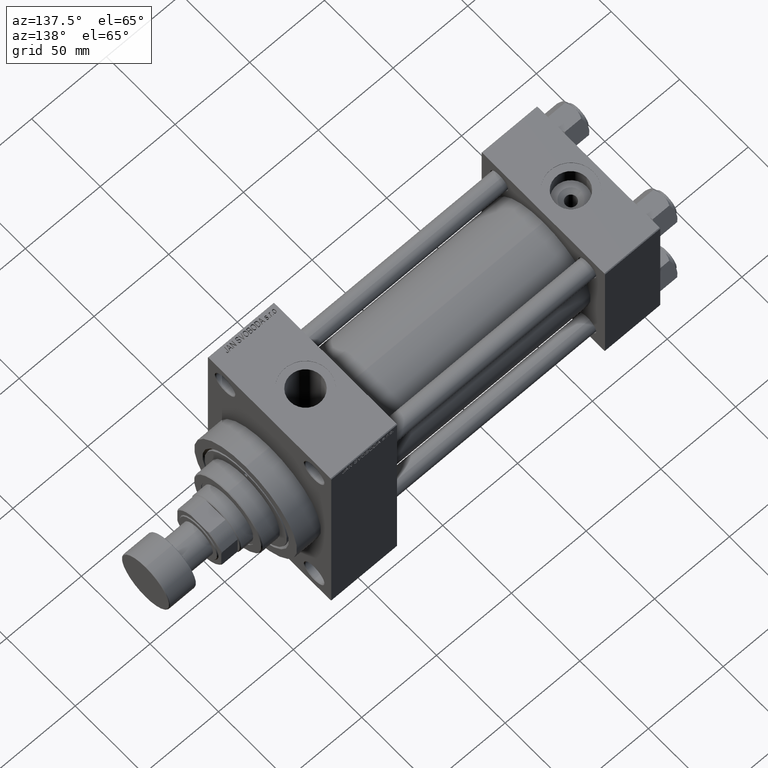
[diagram: clean part render]
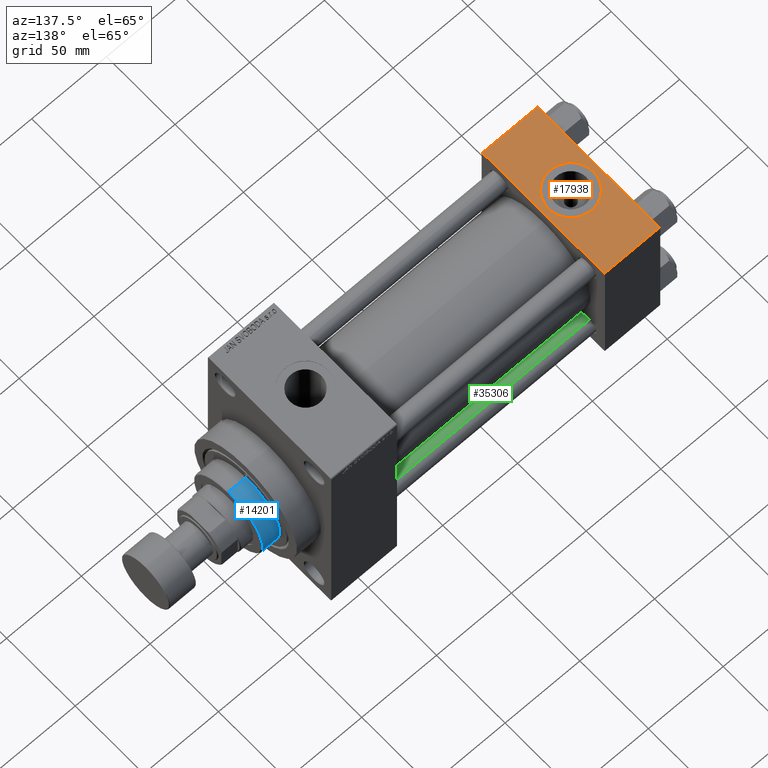
[diagram: same view with three faces highlighted in distinct colors, each labeled with its STEP entity id]
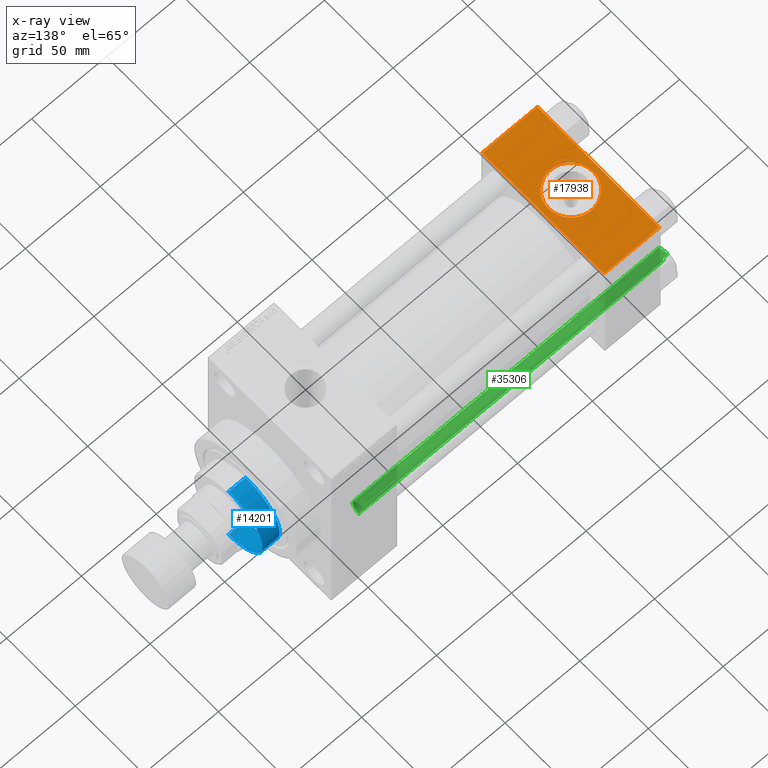
[diagram: x-ray of the same camera — body ghosted, the three highlighted faces saturated]
A machine part, auxiliary view with three faces highlighted in distinct colors.
The next image is the same camera in x-ray (body ghosted, the three faces saturated) — at least one of them is partly hidden behind the body in this view.
Their STEP definitions:

[orange] entity #17938 — the highlighted planar face has unit normal (0, 0, -1).
#130 = CARTESIAN_POINT ( 'NONE',  ( 37.00000000000000000, 44.99999999999998579, 45.00000000000001421 ) ) ;
#324 = CARTESIAN_POINT ( 'NONE',  ( 37.00000000000000000, 44.49999999999998579, 45.00000000000001421 ) ) ;
#432 = LINE ( 'NONE', #4038, #33107 ) ;
#2066 = EDGE_LOOP ( 'NONE', ( #25202, #12682, #42673, #21656 ) ) ;
#2380 = CARTESIAN_POINT ( 'NONE',  ( 33.50000000000000000, -8.673617379884038628E-15, 45.00000000000000711 ) ) ;
#2385 = CARTESIAN_POINT ( 'NONE',  ( 18.50000000000000000, -8.673617379884038628E-15, 45.00000000000000711 ) ) ;
#2559 = CARTESIAN_POINT ( 'NONE',  ( 37.00000000000000000, -44.49999999999995737, 45.00000000000000000 ) ) ;
#2799 = DIRECTION ( 'NONE',  ( 0.000000000000000000, -1.000000000000000000, -1.541976423090495387E-16 ) ) ;
#3414 = CARTESIAN_POINT ( 'NONE',  ( 37.00000000000000000, 44.99999999999998579, 45.00000000000001421 ) ) ;
#3776 = LINE ( 'NONE', #7181, #11688 ) ;
#4038 = CARTESIAN_POINT ( 'NONE',  ( 0.000000000000000000, 44.49999999999998579, 45.00000000000001421 ) ) ;
#4618 = CIRCLE ( 'NONE', #15455, 15.00000000000000355 ) ;
#5720 = DIRECTION ( 'NONE',  ( 1.000000000000000000, 0.000000000000000000, 0.000000000000000000 ) ) ;
#6525 = VERTEX_POINT ( 'NONE', #27714 ) ;
#6770 = VERTEX_POINT ( 'NONE', #2380 ) ;
#6875 = VECTOR ( 'NONE', #5720, 1000.000000000000000 ) ;
#7181 = CARTESIAN_POINT ( 'NONE',  ( 0.000000000000000000, 44.99999999999998579, 45.00000000000001421 ) ) ;
#8363 = CIRCLE ( 'NONE', #14570, 15.00000000000000355 ) ;
#11688 = VECTOR ( 'NONE', #47631, 1000.000000000000000 ) ;
#12682 = ORIENTED_EDGE ( 'NONE', *, *, #32626, .T. ) ;
#13538 = DIRECTION ( 'NONE',  ( 1.000000000000000000, 0.000000000000000000, 0.000000000000000000 ) ) ;
#14570 = AXIS2_PLACEMENT_3D ( 'NONE', #2385, #31938, #13538 ) ;
#15302 = FACE_OUTER_BOUND ( 'NONE', #2066, .T. ) ;
#15455 = AXIS2_PLACEMENT_3D ( 'NONE', #21892, #29167, #43952 ) ;
#15534 = DIRECTION ( 'NONE',  ( 0.000000000000000000, 1.000000000000000000, 1.541976423090495633E-16 ) ) ;
#16593 = CARTESIAN_POINT ( 'NONE',  ( 0.000000000000000000, -44.49999999999995737, 45.00000000000000000 ) ) ;
#16923 = VERTEX_POINT ( 'NONE', #324 ) ;
#17938 = ADVANCED_FACE ( 'NONE', ( #37081, #15302 ), #22073, .F. ) ;
#21457 = LINE ( 'NONE', #130, #22300 ) ;
#21656 = ORIENTED_EDGE ( 'NONE', *, *, #32449, .T. ) ;
#21892 = CARTESIAN_POINT ( 'NONE',  ( 18.50000000000000000, -8.673617379884038628E-15, 45.00000000000000711 ) ) ;
#22073 = PLANE ( 'NONE',  #36749 ) ;
#22300 = VECTOR ( 'NONE', #2799, 1000.000000000000000 ) ;
#22381 = ORIENTED_EDGE ( 'NONE', *, *, #32356, .F. ) ;
#25202 = ORIENTED_EDGE ( 'NONE', *, *, #38329, .T. ) ;
#27714 = CARTESIAN_POINT ( 'NONE',  ( 3.499999999999997780, -6.836647181163008250E-15, 45.00000000000000711 ) ) ;
#28806 = EDGE_CURVE ( 'NONE', #16923, #29642, #21457, .T. ) ;
#29167 = DIRECTION ( 'NONE',  ( 0.000000000000000000, 0.000000000000000000, 1.000000000000000000 ) ) ;
#29642 = VERTEX_POINT ( 'NONE', #2559 ) ;
#30933 = CARTESIAN_POINT ( 'NONE',  ( 37.00000000000000000, -44.49999999999998579, 45.00000000000000000 ) ) ;
#31277 = EDGE_LOOP ( 'NONE', ( #36359, #22381 ) ) ;
#31938 = DIRECTION ( 'NONE',  ( 0.000000000000000000, 0.000000000000000000, 1.000000000000000000 ) ) ;
#32356 = EDGE_CURVE ( 'NONE', #6525, #6770, #8363, .T. ) ;
#32449 = EDGE_CURVE ( 'NONE', #16923, #42569, #432, .T. ) ;
#32626 = EDGE_CURVE ( 'NONE', #33611, #29642, #38911, .T. ) ;
#33107 = VECTOR ( 'NONE', #40642, 1000.000000000000000 ) ;
#33611 = VERTEX_POINT ( 'NONE', #16593 ) ;
#34701 = EDGE_CURVE ( 'NONE', #6770, #6525, #4618, .T. ) ;
#36359 = ORIENTED_EDGE ( 'NONE', *, *, #34701, .F. ) ;
#36749 = AXIS2_PLACEMENT_3D ( 'NONE', #3414, #36848, #15534 ) ;
#36848 = DIRECTION ( 'NONE',  ( 0.000000000000000000, 1.541976423090495633E-16, -1.000000000000000000 ) ) ;
#37081 = FACE_BOUND ( 'NONE', #31277, .T. ) ;
#38329 = EDGE_CURVE ( 'NONE', #42569, #33611, #3776, .T. ) ;
#38911 = LINE ( 'NONE', #30933, #6875 ) ;
#40642 = DIRECTION ( 'NONE',  ( -1.000000000000000000, 0.000000000000000000, 0.000000000000000000 ) ) ;
#42569 = VERTEX_POINT ( 'NONE', #44763 ) ;
#42673 = ORIENTED_EDGE ( 'NONE', *, *, #28806, .F. ) ;
#43952 = DIRECTION ( 'NONE',  ( 1.000000000000000000, 0.000000000000000000, 0.000000000000000000 ) ) ;
#44763 = CARTESIAN_POINT ( 'NONE',  ( 0.000000000000000000, 44.49999999999998579, 45.00000000000001421 ) ) ;
#47631 = DIRECTION ( 'NONE',  ( 0.000000000000000000, -1.000000000000000000, -1.541976423090495387E-16 ) ) ;

[blue] entity #14201 — the highlighted cylindrical surface (partial cylindrical patch) has radius 25 mm, axis along (-1, 0, 0).
#132 = EDGE_CURVE ( 'NONE', #25321, #42582, #32632, .T. ) ;
#166 = CARTESIAN_POINT ( 'NONE',  ( 25.00000000000000000, 3.061616997868383043E-15, 54.76000000000000512 ) ) ;
#952 = VERTEX_POINT ( 'NONE', #44386 ) ;
#1367 = ORIENTED_EDGE ( 'NONE', *, *, #41725, .F. ) ;
#1395 = LINE ( 'NONE', #24142, #38126 ) ;
#1787 = AXIS2_PLACEMENT_3D ( 'NONE', #24392, #14450, #29221 ) ;
#2247 = VERTEX_POINT ( 'NONE', #166 ) ;
#2971 = CARTESIAN_POINT ( 'NONE',  ( 0.000000000000000000, 0.000000000000000000, 55.26000000000000512 ) ) ;
#6608 = FACE_OUTER_BOUND ( 'NONE', #37935, .T. ) ;
#7155 = VECTOR ( 'NONE', #29481, 1000.000000000000000 ) ;
#11545 = AXIS2_PLACEMENT_3D ( 'NONE', #43402, #36839, #40962 ) ;
#14201 = ADVANCED_FACE ( 'NONE', ( #6608 ), #36156, .T. ) ;
#14450 = DIRECTION ( 'NONE',  ( 0.000000000000000000, 0.000000000000000000, -1.000000000000000000 ) ) ;
#17396 = CARTESIAN_POINT ( 'NONE',  ( -25.00000000000000000, 0.000000000000000000, 55.26000000000000512 ) ) ;
#21387 = DIRECTION ( 'NONE',  ( -1.000000000000000000, 0.000000000000000000, 0.000000000000000000 ) ) ;
#24142 = CARTESIAN_POINT ( 'NONE',  ( 25.00000000000000000, 3.061616997868383043E-15, 55.26000000000000512 ) ) ;
#24392 = CARTESIAN_POINT ( 'NONE',  ( 0.000000000000000000, 0.000000000000000000, 54.76000000000000512 ) ) ;
#24513 = AXIS2_PLACEMENT_3D ( 'NONE', #2971, #40509, #21387 ) ;
#25321 = VERTEX_POINT ( 'NONE', #38054 ) ;
#29221 = DIRECTION ( 'NONE',  ( 1.000000000000000000, 0.000000000000000000, 0.000000000000000000 ) ) ;
#29481 = DIRECTION ( 'NONE',  ( -0.000000000000000000, -0.000000000000000000, -1.000000000000000000 ) ) ;
#32632 = LINE ( 'NONE', #17396, #7155 ) ;
#34038 = EDGE_CURVE ( 'NONE', #42582, #952, #37816, .T. ) ;
#35037 = CARTESIAN_POINT ( 'NONE',  ( -25.00000000000000000, 0.000000000000000000, 43.25999999999999801 ) ) ;
#36156 = CYLINDRICAL_SURFACE ( 'NONE', #24513, 25.00000000000000000 ) ;
#36839 = DIRECTION ( 'NONE',  ( 0.000000000000000000, 0.000000000000000000, 1.000000000000000000 ) ) ;
#37816 = CIRCLE ( 'NONE', #11545, 25.00000000000000000 ) ;
#37935 = EDGE_LOOP ( 'NONE', ( #1367, #45694, #43118, #47921 ) ) ;
#38054 = CARTESIAN_POINT ( 'NONE',  ( -25.00000000000000000, 0.000000000000000000, 54.76000000000000512 ) ) ;
#38126 = VECTOR ( 'NONE', #42078, 1000.000000000000000 ) ;
#40509 = DIRECTION ( 'NONE',  ( -0.000000000000000000, -0.000000000000000000, -1.000000000000000000 ) ) ;
#40962 = DIRECTION ( 'NONE',  ( 1.000000000000000000, 0.000000000000000000, 0.000000000000000000 ) ) ;
#41725 = EDGE_CURVE ( 'NONE', #2247, #952, #1395, .T. ) ;
#42078 = DIRECTION ( 'NONE',  ( -0.000000000000000000, -0.000000000000000000, -1.000000000000000000 ) ) ;
#42582 = VERTEX_POINT ( 'NONE', #35037 ) ;
#42787 = CIRCLE ( 'NONE', #1787, 25.00000000000000000 ) ;
#42848 = EDGE_CURVE ( 'NONE', #2247, #25321, #42787, .T. ) ;
#43118 = ORIENTED_EDGE ( 'NONE', *, *, #132, .T. ) ;
#43402 = CARTESIAN_POINT ( 'NONE',  ( 0.000000000000000000, 0.000000000000000000, 43.25999999999999801 ) ) ;
#44386 = CARTESIAN_POINT ( 'NONE',  ( 25.00000000000000000, 3.061616997868383043E-15, 43.25999999999999801 ) ) ;
#45694 = ORIENTED_EDGE ( 'NONE', *, *, #42848, .T. ) ;
#47921 = ORIENTED_EDGE ( 'NONE', *, *, #34038, .T. ) ;

[green] entity #35306 — the highlighted cylindrical surface (edge-blend (fillet) strip) has radius 6 mm, axis along (1, -0, 0).
#2416 = VERTEX_POINT ( 'NONE', #3955 ) ;
#2741 = DIRECTION ( 'NONE',  ( 1.000000000000000000, 0.000000000000000000, 0.000000000000000000 ) ) ;
#3217 = DIRECTION ( 'NONE',  ( 0.000000000000000000, 0.000000000000000000, -1.000000000000000000 ) ) ;
#3955 = CARTESIAN_POINT ( 'NONE',  ( 6.000000000000000888, 7.347880794884119736E-16, 0.5000000000001114664 ) ) ;
#6347 = DIRECTION ( 'NONE',  ( -0.000000000000000000, -0.000000000000000000, -1.000000000000000000 ) ) ;
#8628 = ORIENTED_EDGE ( 'NONE', *, *, #24921, .F. ) ;
#10349 = DIRECTION ( 'NONE',  ( -0.000000000000000000, -0.000000000000000000, -1.000000000000000000 ) ) ;
#10593 = CARTESIAN_POINT ( 'NONE',  ( -6.000000000000000888, 0.000000000000000000, 205.0000000000000000 ) ) ;
#12289 = EDGE_CURVE ( 'NONE', #21004, #20489, #40608, .T. ) ;
#14404 = DIRECTION ( 'NONE',  ( -0.000000000000000000, -0.000000000000000000, -1.000000000000000000 ) ) ;
#17495 = CARTESIAN_POINT ( 'NONE',  ( 0.000000000000000000, 0.000000000000000000, 205.0000000000000000 ) ) ;
#17510 = EDGE_LOOP ( 'NONE', ( #8628, #47627, #30249, #25943 ) ) ;
#18988 = CARTESIAN_POINT ( 'NONE',  ( -6.000000000000000888, 0.000000000000000000, 204.5000000000000568 ) ) ;
#20489 = VERTEX_POINT ( 'NONE', #24881 ) ;
#20881 = EDGE_CURVE ( 'NONE', #20489, #2416, #33662, .T. ) ;
#21004 = VERTEX_POINT ( 'NONE', #18988 ) ;
#21432 = CARTESIAN_POINT ( 'NONE',  ( 6.000000000000000888, 7.347880794884119736E-16, 205.0000000000000000 ) ) ;
#22394 = AXIS2_PLACEMENT_3D ( 'NONE', #17495, #6347, #24992 ) ;
#22961 = VECTOR ( 'NONE', #14404, 1000.000000000000000 ) ;
#24881 = CARTESIAN_POINT ( 'NONE',  ( -6.000000000000000888, 0.000000000000000000, 0.5000000000001114664 ) ) ;
#24921 = EDGE_CURVE ( 'NONE', #34750, #2416, #47106, .T. ) ;
#24992 = DIRECTION ( 'NONE',  ( -1.000000000000000000, 0.000000000000000000, 0.000000000000000000 ) ) ;
#25529 = DIRECTION ( 'NONE',  ( -0.000000000000000000, -0.000000000000000000, 1.000000000000000000 ) ) ;
#25943 = ORIENTED_EDGE ( 'NONE', *, *, #20881, .T. ) ;
#26722 = EDGE_CURVE ( 'NONE', #34750, #21004, #36165, .T. ) ;
#30249 = ORIENTED_EDGE ( 'NONE', *, *, #12289, .T. ) ;
#32529 = CARTESIAN_POINT ( 'NONE',  ( 0.000000000000000000, 0.000000000000000000, 204.5000000000000568 ) ) ;
#33252 = CARTESIAN_POINT ( 'NONE',  ( 6.000000000000000888, 7.347880794884119736E-16, 204.5000000000000568 ) ) ;
#33662 = CIRCLE ( 'NONE', #46057, 6.000000000000000888 ) ;
#34750 = VERTEX_POINT ( 'NONE', #33252 ) ;
#35257 = VECTOR ( 'NONE', #10349, 1000.000000000000000 ) ;
#35306 = ADVANCED_FACE ( 'NONE', ( #40016 ), #39287, .T. ) ;
#36165 = CIRCLE ( 'NONE', #47743, 6.000000000000000888 ) ;
#39287 = CYLINDRICAL_SURFACE ( 'NONE', #22394, 6.000000000000000888 ) ;
#40016 = FACE_OUTER_BOUND ( 'NONE', #17510, .T. ) ;
#40608 = LINE ( 'NONE', #10593, #35257 ) ;
#46057 = AXIS2_PLACEMENT_3D ( 'NONE', #46863, #25529, #47809 ) ;
#46863 = CARTESIAN_POINT ( 'NONE',  ( 0.000000000000000000, 0.000000000000000000, 0.5000000000001114664 ) ) ;
#47106 = LINE ( 'NONE', #21432, #22961 ) ;
#47627 = ORIENTED_EDGE ( 'NONE', *, *, #26722, .T. ) ;
#47743 = AXIS2_PLACEMENT_3D ( 'NONE', #32529, #3217, #2741 ) ;
#47809 = DIRECTION ( 'NONE',  ( 1.000000000000000000, 0.000000000000000000, 0.000000000000000000 ) ) ;